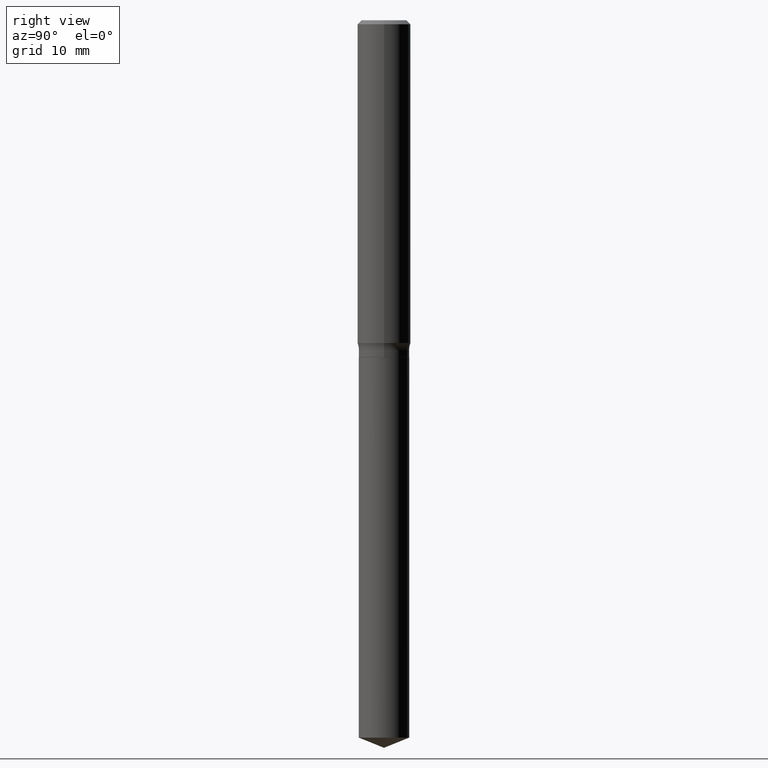
[diagram: clean part render]
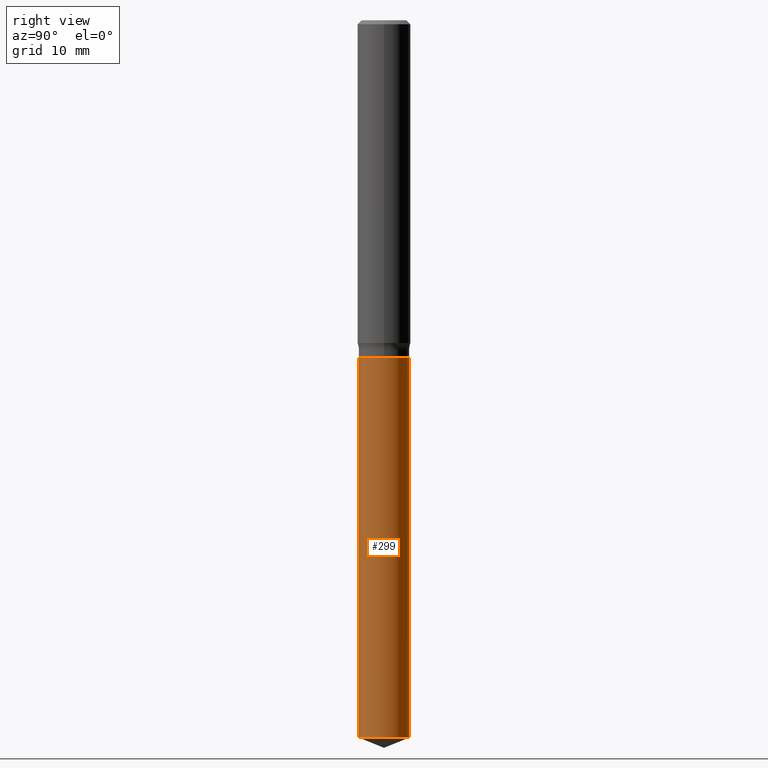
[diagram: same view with one face highlighted and labeled with its STEP entity id]
A machine part, right view. The second image highlights one B-rep face of the part: STEP entity #299.
In plain terms, the highlighted cylindrical surface (edge-blend (fillet) strip) has radius 2.8499 mm, axis along (-0, 0, 1).
Its self-contained STEP definition (entity closure, byte-faithful):
#5 = CARTESIAN_POINT ( 'NONE',  ( 3.657687693411109493E-29, -5.222208638507693246E-15, -1.495700000000000029 ) ) ;
#9 = ORIENTED_EDGE ( 'NONE', *, *, #89, .F. ) ;
#11 = LINE ( 'NONE', #474, #375 ) ;
#20 = CARTESIAN_POINT ( 'NONE',  ( 3.657687693411109493E-29, -5.222208638507693246E-15, -1.495700000000000029 ) ) ;
#29 = DIRECTION ( 'NONE',  ( -2.445463019248761215E-29, 3.491489626065407071E-15, 1.000000000000000000 ) ) ;
#89 = EDGE_CURVE ( 'NONE', #270, #215, #103, .T. ) ;
#103 = LINE ( 'NONE', #145, #164 ) ;
#118 = ORIENTED_EDGE ( 'NONE', *, *, #390, .T. ) ;
#131 = EDGE_LOOP ( 'NONE', ( #308, #118, #278, #9 ) ) ;
#133 = DIRECTION ( 'NONE',  ( -6.982962677686265133E-15, -1.000000000000000000, 2.434802133390608632E-15 ) ) ;
#145 = CARTESIAN_POINT ( 'NONE',  ( -7.834884124363625186E-16, -0.1122000000000052261, -1.495699999999999807 ) ) ;
#164 = VECTOR ( 'NONE', #444, 39.37007874015748143 ) ;
#165 = CIRCLE ( 'NONE', #436, 0.1122000000000000081 ) ;
#169 = DIRECTION ( 'NONE',  ( -2.445463019248761495E-29, 3.491489626065407071E-15, 1.000000000000000000 ) ) ;
#174 = CARTESIAN_POINT ( 'NONE',  ( 7.972289495229102672E-16, 0.1121999999999947761, -1.495700000000000474 ) ) ;
#183 = DIRECTION ( 'NONE',  ( -6.982962677686265133E-15, -1.000000000000000000, 2.434802133390608632E-15 ) ) ;
#215 = VERTEX_POINT ( 'NONE', #339 ) ;
#217 = CIRCLE ( 'NONE', #382, 0.1122000000000000081 ) ;
#219 = VERTEX_POINT ( 'NONE', #294 ) ;
#257 = DIRECTION ( 'NONE',  ( -6.982962677686265133E-15, -1.000000000000000000, 4.869604266781217263E-15 ) ) ;
#270 = VERTEX_POINT ( 'NONE', #466 ) ;
#274 = FACE_OUTER_BOUND ( 'NONE', #131, .T. ) ;
#278 = ORIENTED_EDGE ( 'NONE', *, *, #470, .F. ) ;
#294 = CARTESIAN_POINT ( 'NONE',  ( 7.972289495229100700E-16, 0.1121999999999888920, -3.182668257461295891 ) ) ;
#299 = ADVANCED_FACE ( 'NONE', ( #274 ), #434, .T. ) ;
#308 = ORIENTED_EDGE ( 'NONE', *, *, #463, .T. ) ;
#316 = DIRECTION ( 'NONE',  ( -2.445463019248761215E-29, 3.491489626065407071E-15, 1.000000000000000000 ) ) ;
#328 = AXIS2_PLACEMENT_3D ( 'NONE', #5, #316, #133 ) ;
#339 = CARTESIAN_POINT ( 'NONE',  ( -7.834884124363625186E-16, -0.1122000000000052261, -1.495699999999999807 ) ) ;
#359 = VERTEX_POINT ( 'NONE', #174 ) ;
#375 = VECTOR ( 'NONE', #169, 39.37007874015748143 ) ;
#382 = AXIS2_PLACEMENT_3D ( 'NONE', #446, #29, #257 ) ;
#390 = EDGE_CURVE ( 'NONE', #219, #359, #11, .T. ) ;
#434 = CYLINDRICAL_SURFACE ( 'NONE', #328, 0.1122000000000000081 ) ;
#436 = AXIS2_PLACEMENT_3D ( 'NONE', #20, #476, #183 ) ;
#444 = DIRECTION ( 'NONE',  ( -2.445463019248761495E-29, 3.491489626065407071E-15, 1.000000000000000000 ) ) ;
#446 = CARTESIAN_POINT ( 'NONE',  ( 7.783106181679228868E-29, -1.111224080893544162E-14, -3.182668257461295003 ) ) ;
#463 = EDGE_CURVE ( 'NONE', #270, #219, #217, .T. ) ;
#466 = CARTESIAN_POINT ( 'NONE',  ( -7.834884124363212020E-16, -0.1122000000000110964, -3.182668257461294559 ) ) ;
#470 = EDGE_CURVE ( 'NONE', #215, #359, #165, .T. ) ;
#474 = CARTESIAN_POINT ( 'NONE',  ( 7.972289495228688520E-16, 0.1121999999999947761, -1.495700000000000474 ) ) ;
#476 = DIRECTION ( 'NONE',  ( -2.445463019248761215E-29, 3.491489626065407071E-15, 1.000000000000000000 ) ) ;